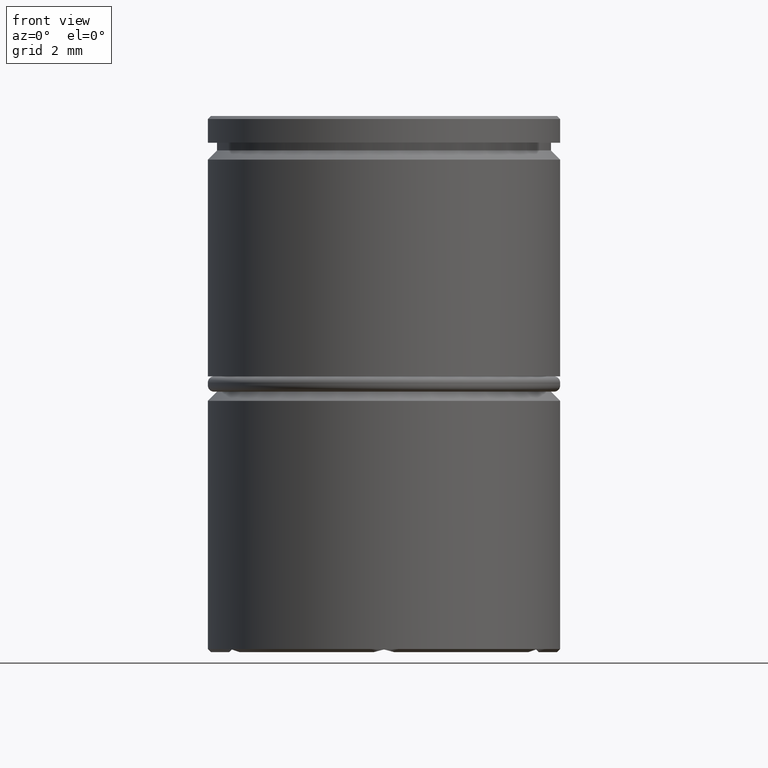
[diagram: clean part render]
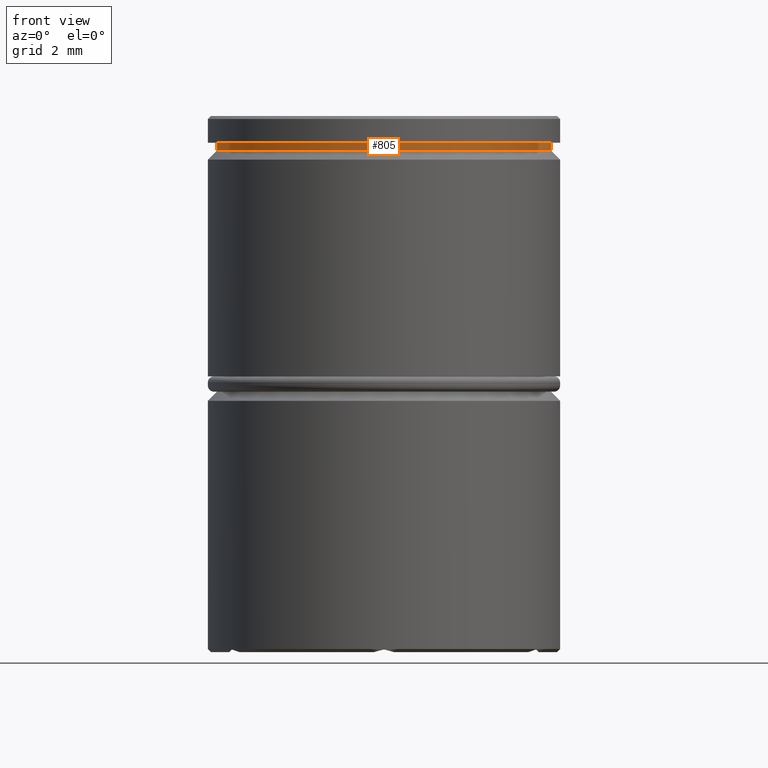
[diagram: same view with one face highlighted and labeled with its STEP entity id]
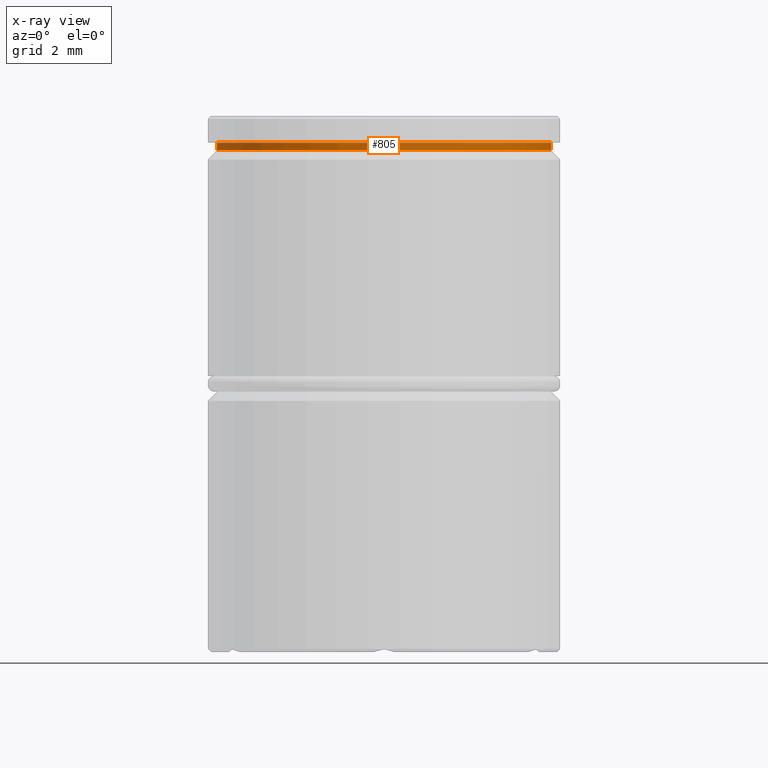
[diagram: x-ray of the same camera — body ghosted, the highlighted face saturated]
A machine part, front view. The second image highlights one B-rep face of the part: STEP entity #805.
The next image is the same camera in x-ray: the body ghosted, the highlighted face saturated — about 0% of this face is hidden behind the body in this view.
In plain terms, the highlighted cylindrical surface (partial cylindrical patch) has radius 5.45 mm, axis along (-0, -0, 1).
Its self-contained STEP definition (entity closure, byte-faithful):
#14 = VERTEX_POINT ( 'NONE', #1250 ) ;
#69 = CARTESIAN_POINT ( 'NONE',  ( 0.000000000000000000, 0.000000000000000000, 0.000000000000000000 ) ) ;
#133 = EDGE_CURVE ( 'NONE', #816, #1246, #1027, .T. ) ;
#177 = AXIS2_PLACEMENT_3D ( 'NONE', #994, #1328, #372 ) ;
#185 = FACE_OUTER_BOUND ( 'NONE', #648, .T. ) ;
#210 = DIRECTION ( 'NONE',  ( -0.000000000000000000, -0.000000000000000000, 1.000000000000000000 ) ) ;
#237 = ORIENTED_EDGE ( 'NONE', *, *, #554, .T. ) ;
#256 = ORIENTED_EDGE ( 'NONE', *, *, #872, .T. ) ;
#341 = CARTESIAN_POINT ( 'NONE',  ( 0.000000000000000000, 0.000000000000000000, -0.8749999999999998890 ) ) ;
#372 = DIRECTION ( 'NONE',  ( 1.000000000000000000, 0.000000000000000000, 0.000000000000000000 ) ) ;
#431 = CARTESIAN_POINT ( 'NONE',  ( 5.450000000000000178, 0.000000000000000000, 0.000000000000000000 ) ) ;
#449 = DIRECTION ( 'NONE',  ( -0.000000000000000000, -0.000000000000000000, 1.000000000000000000 ) ) ;
#457 = CIRCLE ( 'NONE', #177, 5.450000000000000178 ) ;
#500 = DIRECTION ( 'NONE',  ( -0.000000000000000000, -0.000000000000000000, 1.000000000000000000 ) ) ;
#508 = VECTOR ( 'NONE', #886, 1000.000000000000000 ) ;
#554 = EDGE_CURVE ( 'NONE', #14, #1246, #728, .T. ) ;
#571 = ORIENTED_EDGE ( 'NONE', *, *, #133, .F. ) ;
#594 = VECTOR ( 'NONE', #210, 1000.000000000000000 ) ;
#648 = EDGE_LOOP ( 'NONE', ( #847, #256, #237, #571 ) ) ;
#685 = CARTESIAN_POINT ( 'NONE',  ( -5.450000000000000178, 6.674325055353075238E-16, -1.125000000000000222 ) ) ;
#728 = LINE ( 'NONE', #431, #594 ) ;
#741 = CARTESIAN_POINT ( 'NONE',  ( 5.450000000000000178, 0.000000000000000000, -0.8749999999999998890 ) ) ;
#748 = VERTEX_POINT ( 'NONE', #685 ) ;
#805 = ADVANCED_FACE ( 'NONE', ( #185 ), #1018, .T. ) ;
#816 = VERTEX_POINT ( 'NONE', #874 ) ;
#847 = ORIENTED_EDGE ( 'NONE', *, *, #961, .F. ) ;
#872 = EDGE_CURVE ( 'NONE', #748, #14, #457, .T. ) ;
#874 = CARTESIAN_POINT ( 'NONE',  ( -5.450000000000000178, 6.674325055353075238E-16, -0.8749999999999998890 ) ) ;
#877 = DIRECTION ( 'NONE',  ( 1.000000000000000000, 0.000000000000000000, 0.000000000000000000 ) ) ;
#886 = DIRECTION ( 'NONE',  ( -0.000000000000000000, -0.000000000000000000, 1.000000000000000000 ) ) ;
#892 = CARTESIAN_POINT ( 'NONE',  ( -5.450000000000000178, 6.674325055353075238E-16, 0.000000000000000000 ) ) ;
#914 = DIRECTION ( 'NONE',  ( 1.000000000000000000, 0.000000000000000000, 0.000000000000000000 ) ) ;
#961 = EDGE_CURVE ( 'NONE', #748, #816, #1291, .T. ) ;
#994 = CARTESIAN_POINT ( 'NONE',  ( 0.000000000000000000, 0.000000000000000000, -1.125000000000000222 ) ) ;
#1008 = AXIS2_PLACEMENT_3D ( 'NONE', #341, #449, #877 ) ;
#1018 = CYLINDRICAL_SURFACE ( 'NONE', #1068, 5.450000000000000178 ) ;
#1027 = CIRCLE ( 'NONE', #1008, 5.450000000000000178 ) ;
#1068 = AXIS2_PLACEMENT_3D ( 'NONE', #69, #500, #914 ) ;
#1246 = VERTEX_POINT ( 'NONE', #741 ) ;
#1250 = CARTESIAN_POINT ( 'NONE',  ( 5.450000000000000178, 0.000000000000000000, -1.125000000000000222 ) ) ;
#1291 = LINE ( 'NONE', #892, #508 ) ;
#1328 = DIRECTION ( 'NONE',  ( -0.000000000000000000, -0.000000000000000000, 1.000000000000000000 ) ) ;